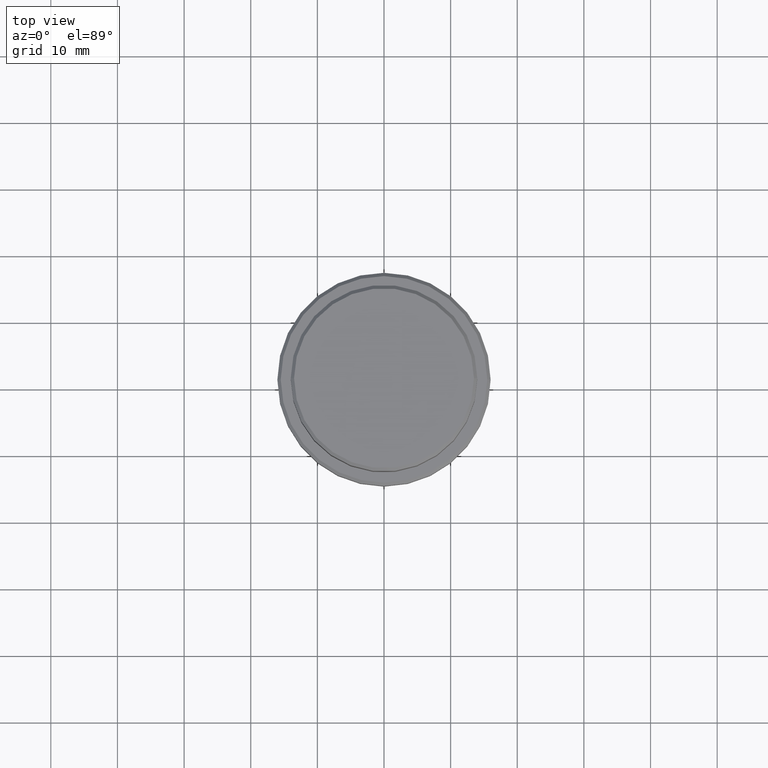
[diagram: clean part render]
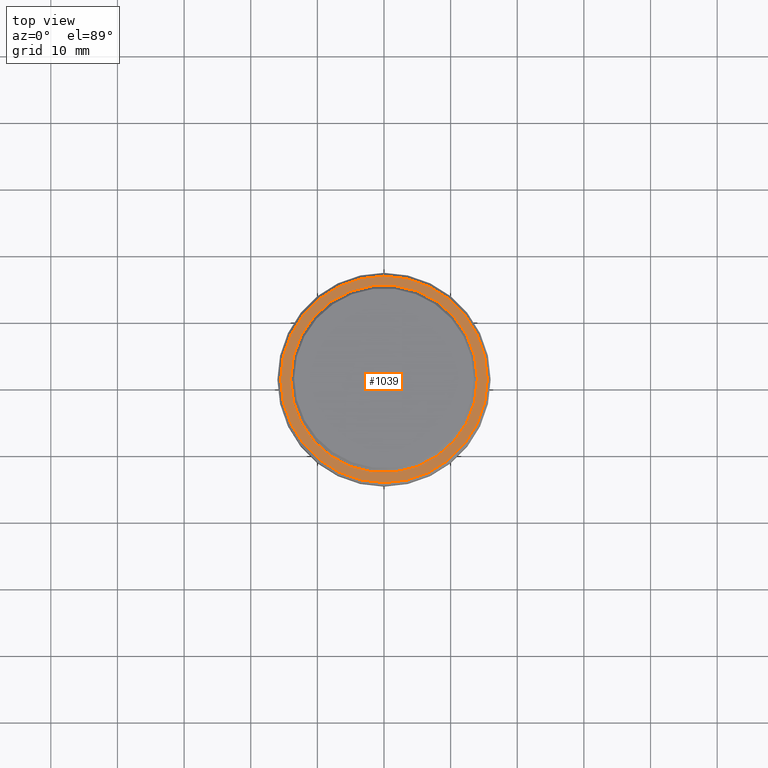
[diagram: same view with one face highlighted and labeled with its STEP entity id]
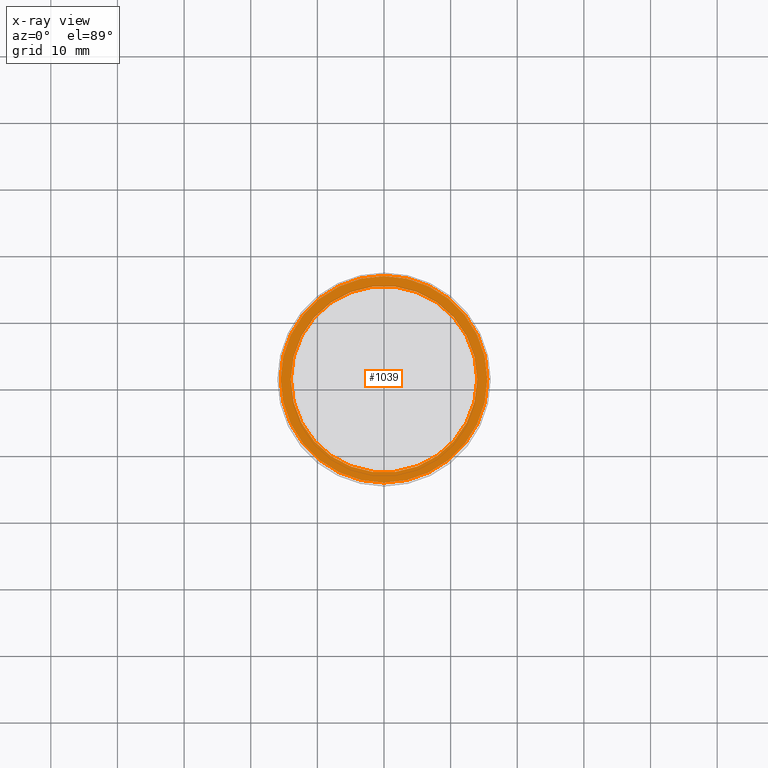
[diagram: x-ray of the same camera — body ghosted, the highlighted face saturated]
A machine part, top view. The second image highlights one B-rep face of the part: STEP entity #1039.
The next image is the same camera in x-ray: the body ghosted, the highlighted face saturated — about 0% of this face is hidden behind the body in this view.
In plain terms, the highlighted planar face has unit normal (0, -0, 1).
Its self-contained STEP definition (entity closure, byte-faithful):
#18 = EDGE_CURVE ( 'NONE', #727, #724, #1273, .T. ) ;
#30 = CIRCLE ( 'NONE', #295, 15.50000000000001421 ) ;
#64 = DIRECTION ( 'NONE',  ( 1.000000000000000000, 0.000000000000000000, 0.000000000000000000 ) ) ;
#66 = EDGE_LOOP ( 'NONE', ( #973, #1295 ) ) ;
#68 = FACE_OUTER_BOUND ( 'NONE', #66, .T. ) ;
#172 = CARTESIAN_POINT ( 'NONE',  ( 0.000000000000000000, 0.000000000000000000, -10.00000000000000178 ) ) ;
#232 = DIRECTION ( 'NONE',  ( 1.000000000000000000, 0.000000000000000000, 0.000000000000000000 ) ) ;
#295 = AXIS2_PLACEMENT_3D ( 'NONE', #647, #1216, #232 ) ;
#324 = DIRECTION ( 'NONE',  ( 1.000000000000000000, 0.000000000000000000, 0.000000000000000000 ) ) ;
#391 = DIRECTION ( 'NONE',  ( 1.000000000000000000, 0.000000000000000000, 0.000000000000000000 ) ) ;
#435 = CARTESIAN_POINT ( 'NONE',  ( -13.99999999999998757, 1.714505518806293060E-15, -10.00000000000000178 ) ) ;
#446 = CARTESIAN_POINT ( 'NONE',  ( 15.50000000000001421, 1.928818708657081739E-15, -10.00000000000000178 ) ) ;
#453 = CIRCLE ( 'NONE', #1211, 15.50000000000001421 ) ;
#495 = FACE_BOUND ( 'NONE', #1383, .T. ) ;
#555 = AXIS2_PLACEMENT_3D ( 'NONE', #633, #1088, #324 ) ;
#633 = CARTESIAN_POINT ( 'NONE',  ( 0.000000000000000000, 0.000000000000000000, -10.00000000000000178 ) ) ;
#647 = CARTESIAN_POINT ( 'NONE',  ( 0.000000000000000000, 0.000000000000000000, -10.00000000000000178 ) ) ;
#649 = CARTESIAN_POINT ( 'NONE',  ( 0.000000000000000000, 0.000000000000000000, -10.00000000000000178 ) ) ;
#660 = VERTEX_POINT ( 'NONE', #963 ) ;
#666 = CARTESIAN_POINT ( 'NONE',  ( 13.99999999999998757, 0.000000000000000000, -10.00000000000000178 ) ) ;
#724 = VERTEX_POINT ( 'NONE', #435 ) ;
#727 = VERTEX_POINT ( 'NONE', #666 ) ;
#772 = DIRECTION ( 'NONE',  ( -0.000000000000000000, -0.000000000000000000, 1.000000000000000000 ) ) ;
#783 = DIRECTION ( 'NONE',  ( 1.000000000000000000, 0.000000000000000000, 0.000000000000000000 ) ) ;
#786 = EDGE_CURVE ( 'NONE', #838, #660, #453, .T. ) ;
#810 = DIRECTION ( 'NONE',  ( 0.000000000000000000, 0.000000000000000000, -1.000000000000000000 ) ) ;
#820 = AXIS2_PLACEMENT_3D ( 'NONE', #172, #810, #64 ) ;
#838 = VERTEX_POINT ( 'NONE', #446 ) ;
#844 = PLANE ( 'NONE',  #1213 ) ;
#938 = CARTESIAN_POINT ( 'NONE',  ( 0.000000000000000000, 13.49999999999998757, -10.00000000000000178 ) ) ;
#963 = CARTESIAN_POINT ( 'NONE',  ( -15.50000000000001421, 0.000000000000000000, -10.00000000000000178 ) ) ;
#973 = ORIENTED_EDGE ( 'NONE', *, *, #1282, .T. ) ;
#1039 = ADVANCED_FACE ( 'NONE', ( #68, #495 ), #844, .T. ) ;
#1055 = CIRCLE ( 'NONE', #555, 13.99999999999998757 ) ;
#1088 = DIRECTION ( 'NONE',  ( 0.000000000000000000, 0.000000000000000000, -1.000000000000000000 ) ) ;
#1111 = EDGE_CURVE ( 'NONE', #724, #727, #1055, .T. ) ;
#1160 = ORIENTED_EDGE ( 'NONE', *, *, #1111, .T. ) ;
#1211 = AXIS2_PLACEMENT_3D ( 'NONE', #649, #772, #783 ) ;
#1213 = AXIS2_PLACEMENT_3D ( 'NONE', #938, #1375, #391 ) ;
#1216 = DIRECTION ( 'NONE',  ( -0.000000000000000000, -0.000000000000000000, 1.000000000000000000 ) ) ;
#1273 = CIRCLE ( 'NONE', #820, 13.99999999999998757 ) ;
#1282 = EDGE_CURVE ( 'NONE', #660, #838, #30, .T. ) ;
#1295 = ORIENTED_EDGE ( 'NONE', *, *, #786, .T. ) ;
#1332 = ORIENTED_EDGE ( 'NONE', *, *, #18, .T. ) ;
#1375 = DIRECTION ( 'NONE',  ( 0.000000000000000000, -0.000000000000000000, 1.000000000000000000 ) ) ;
#1383 = EDGE_LOOP ( 'NONE', ( #1332, #1160 ) ) ;